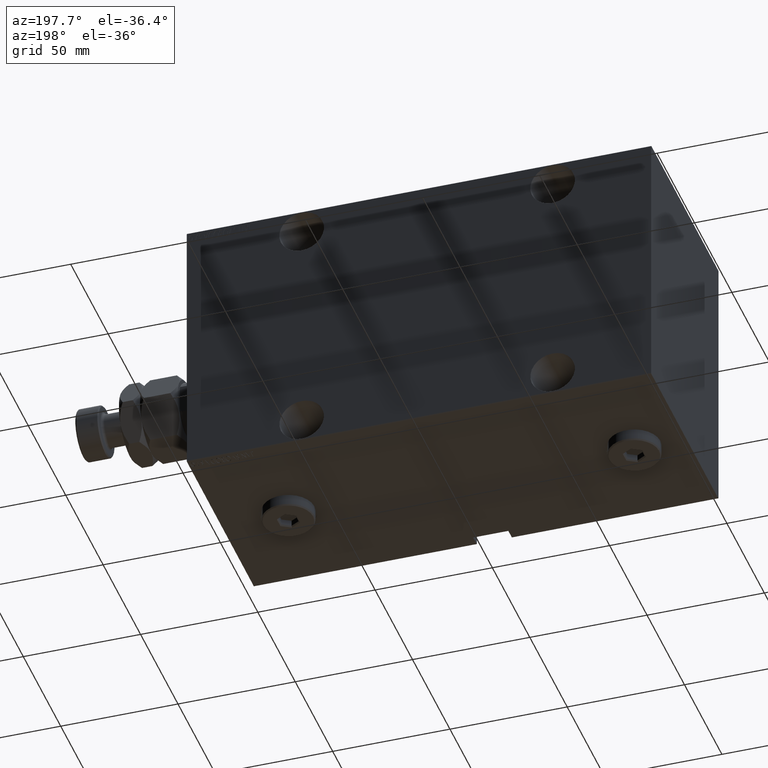
[diagram: clean part render]
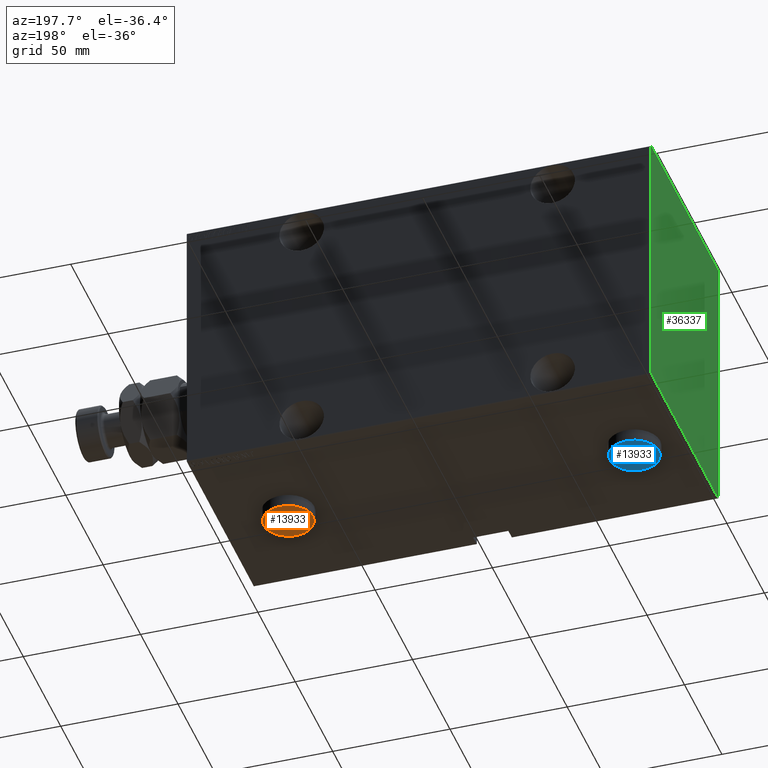
[diagram: same view with three faces highlighted in distinct colors, each labeled with its STEP entity id]
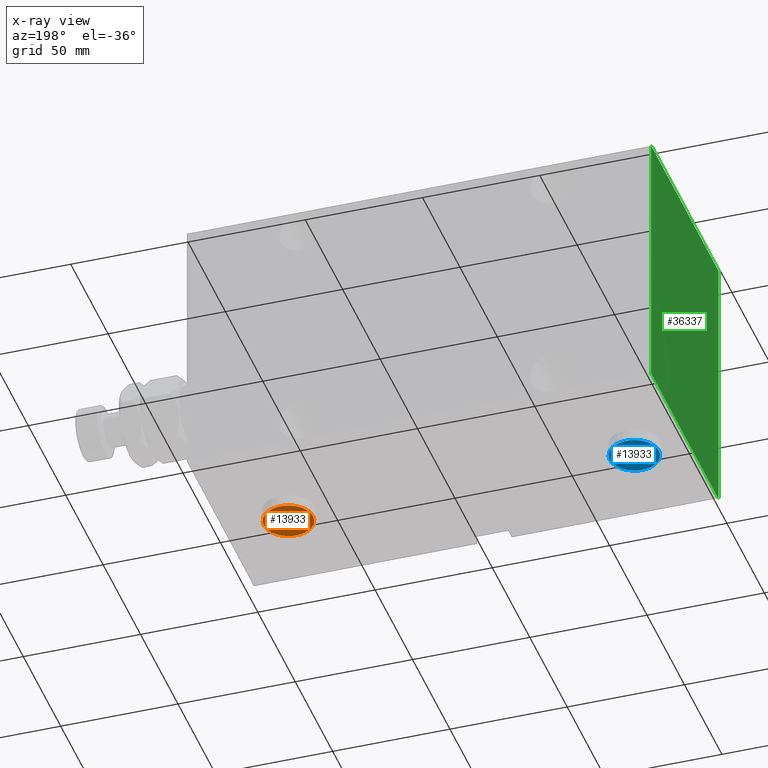
[diagram: x-ray of the same camera — body ghosted, the three highlighted faces saturated]
A machine part, auxiliary view with three faces highlighted in distinct colors.
The next image is the same camera in x-ray (body ghosted, the three faces saturated) — at least one of them is partly hidden behind the body in this view.
Their STEP definitions:

[orange] entity #13933 — the highlighted planar face has unit normal (-0, 0, -1).
#1099 = AXIS2_PLACEMENT_3D ( 'NONE', #19520, #33734, #44201 ) ;
#1739 = VECTOR ( 'NONE', #40780, 1000.000000000000000 ) ;
#1876 = ORIENTED_EDGE ( 'NONE', *, *, #33628, .T. ) ;
#2404 = CARTESIAN_POINT ( 'NONE',  ( -10.50000000000000178, 0.000000000000000000, 5.000000000000000000 ) ) ;
#2684 = ORIENTED_EDGE ( 'NONE', *, *, #27902, .T. ) ;
#5346 = CARTESIAN_POINT ( 'NONE',  ( -4.166666666666664298, 2.405626121623439584, 5.000000000000000000 ) ) ;
#5561 = VECTOR ( 'NONE', #16731, 1000.000000000000000 ) ;
#6632 = DIRECTION ( 'NONE',  ( 0.000000000000000000, 0.000000000000000000, 1.000000000000000000 ) ) ;
#7178 = CARTESIAN_POINT ( 'NONE',  ( 4.166666666666664298, -2.405626121623439584, 5.000000000000000000 ) ) ;
#7204 = VERTEX_POINT ( 'NONE', #30893 ) ;
#7207 = ORIENTED_EDGE ( 'NONE', *, *, #35777, .T. ) ;
#10361 = ORIENTED_EDGE ( 'NONE', *, *, #33558, .T. ) ;
#11261 = ORIENTED_EDGE ( 'NONE', *, *, #36552, .T. ) ;
#11457 = LINE ( 'NONE', #32888, #12334 ) ;
#12033 = DIRECTION ( 'NONE',  ( 1.000000000000000000, 0.000000000000000000, 0.000000000000000000 ) ) ;
#12334 = VECTOR ( 'NONE', #30086, 1000.000000000000000 ) ;
#13609 = FACE_OUTER_BOUND ( 'NONE', #14992, .T. ) ;
#13933 = ADVANCED_FACE ( 'NONE', ( #27589, #13609 ), #42251, .T. ) ;
#14524 = VECTOR ( 'NONE', #17740, 1000.000000000000114 ) ;
#14992 = EDGE_LOOP ( 'NONE', ( #2684, #20699 ) ) ;
#15299 = CARTESIAN_POINT ( 'NONE',  ( 0.000000000000000000, 0.000000000000000000, 5.000000000000000000 ) ) ;
#16211 = VERTEX_POINT ( 'NONE', #41224 ) ;
#16731 = DIRECTION ( 'NONE',  ( -0.8660254037844384856, 0.5000000000000002220, 0.000000000000000000 ) ) ;
#17740 = DIRECTION ( 'NONE',  ( 0.8660254037844388186, 0.4999999999999997780, 0.000000000000000000 ) ) ;
#18246 = ORIENTED_EDGE ( 'NONE', *, *, #28723, .T. ) ;
#19076 = LINE ( 'NONE', #40722, #36798 ) ;
#19520 = CARTESIAN_POINT ( 'NONE',  ( 0.000000000000000000, 0.000000000000000000, 5.000000000000000000 ) ) ;
#19972 = VERTEX_POINT ( 'NONE', #2404 ) ;
#20699 = ORIENTED_EDGE ( 'NONE', *, *, #33293, .T. ) ;
#22382 = AXIS2_PLACEMENT_3D ( 'NONE', #15299, #29281, #12033 ) ;
#22493 = VERTEX_POINT ( 'NONE', #44530 ) ;
#23101 = DIRECTION ( 'NONE',  ( 1.024305408229881337E-16, -1.000000000000000000, 0.000000000000000000 ) ) ;
#23725 = LINE ( 'NONE', #37903, #5561 ) ;
#26590 = CARTESIAN_POINT ( 'NONE',  ( -4.166666666666664298, 2.116950987028627829, 5.000000000000000000 ) ) ;
#26843 = VERTEX_POINT ( 'NONE', #45358 ) ;
#27589 = FACE_BOUND ( 'NONE', #32862, .T. ) ;
#27902 = EDGE_CURVE ( 'NONE', #19972, #22493, #36503, .T. ) ;
#28723 = EDGE_CURVE ( 'NONE', #26843, #30562, #30073, .T. ) ;
#29255 = VERTEX_POINT ( 'NONE', #31983 ) ;
#29281 = DIRECTION ( 'NONE',  ( 0.000000000000000000, 0.000000000000000000, 1.000000000000000000 ) ) ;
#29403 = CARTESIAN_POINT ( 'NONE',  ( 4.166666666666664298, -2.116950987028627384, 5.000000000000000000 ) ) ;
#29819 = VERTEX_POINT ( 'NONE', #7178 ) ;
#30073 = LINE ( 'NONE', #26590, #1739 ) ;
#30086 = DIRECTION ( 'NONE',  ( -0.8660254037844387076, -0.4999999999999998335, 0.000000000000000000 ) ) ;
#30249 = DIRECTION ( 'NONE',  ( 0.8660254037844387076, -0.4999999999999998335, 0.000000000000000000 ) ) ;
#30562 = VERTEX_POINT ( 'NONE', #5346 ) ;
#30893 = CARTESIAN_POINT ( 'NONE',  ( -6.281144585932674641E-17, 4.811252243246876503, 5.000000000000000000 ) ) ;
#31983 = CARTESIAN_POINT ( 'NONE',  ( 4.166666666666663410, 2.405626121623439584, 5.000000000000000000 ) ) ;
#32389 = CARTESIAN_POINT ( 'NONE',  ( -0.2499999999999992506, 4.666914675949470848, 5.000000000000000000 ) ) ;
#32862 = EDGE_LOOP ( 'NONE', ( #18246, #33815, #10361, #11261, #7207, #1876 ) ) ;
#32888 = CARTESIAN_POINT ( 'NONE',  ( 0.2499999999999981681, -4.666914675949471736, 5.000000000000000000 ) ) ;
#33293 = EDGE_CURVE ( 'NONE', #22493, #19972, #34573, .T. ) ;
#33558 = EDGE_CURVE ( 'NONE', #7204, #29255, #19076, .T. ) ;
#33628 = EDGE_CURVE ( 'NONE', #16211, #26843, #23725, .T. ) ;
#33734 = DIRECTION ( 'NONE',  ( 0.000000000000000000, 0.000000000000000000, 1.000000000000000000 ) ) ;
#33815 = ORIENTED_EDGE ( 'NONE', *, *, #38615, .T. ) ;
#34573 = CIRCLE ( 'NONE', #1099, 10.50000000000000178 ) ;
#34966 = LINE ( 'NONE', #32389, #14524 ) ;
#35026 = DIRECTION ( 'NONE',  ( 1.000000000000000000, 0.000000000000000000, -0.000000000000000000 ) ) ;
#35777 = EDGE_CURVE ( 'NONE', #29819, #16211, #11457, .T. ) ;
#36503 = CIRCLE ( 'NONE', #22382, 10.50000000000000178 ) ;
#36552 = EDGE_CURVE ( 'NONE', #29255, #29819, #41024, .T. ) ;
#36798 = VECTOR ( 'NONE', #30249, 1000.000000000000000 ) ;
#37619 = VECTOR ( 'NONE', #23101, 1000.000000000000000 ) ;
#37903 = CARTESIAN_POINT ( 'NONE',  ( -3.916666666666664742, -2.549963688920843907, 5.000000000000000000 ) ) ;
#38615 = EDGE_CURVE ( 'NONE', #30562, #7204, #34966, .T. ) ;
#40722 = CARTESIAN_POINT ( 'NONE',  ( 3.916666666666664742, 2.549963688920845239, 5.000000000000000000 ) ) ;
#40780 = DIRECTION ( 'NONE',  ( 1.024305408229881337E-16, 1.000000000000000000, 0.000000000000000000 ) ) ;
#41024 = LINE ( 'NONE', #29403, #37619 ) ;
#41224 = CARTESIAN_POINT ( 'NONE',  ( -8.363929151985410416E-16, -4.811252243246877391, 5.000000000000000000 ) ) ;
#41786 = CARTESIAN_POINT ( 'NONE',  ( 0.000000000000000000, 0.000000000000000000, 5.000000000000000000 ) ) ;
#42251 = PLANE ( 'NONE',  #45899 ) ;
#44201 = DIRECTION ( 'NONE',  ( 1.000000000000000000, 0.000000000000000000, 0.000000000000000000 ) ) ;
#44530 = CARTESIAN_POINT ( 'NONE',  ( 10.50000000000000178, 1.316495309083404815E-15, 5.000000000000000000 ) ) ;
#45358 = CARTESIAN_POINT ( 'NONE',  ( -4.166666666666665186, -2.405626121623437363, 5.000000000000000000 ) ) ;
#45899 = AXIS2_PLACEMENT_3D ( 'NONE', #41786, #6632, #35026 ) ;

[blue] entity #13933 — the highlighted planar face has unit normal (-0, 0, -1).
#1099 = AXIS2_PLACEMENT_3D ( 'NONE', #19520, #33734, #44201 ) ;
#1739 = VECTOR ( 'NONE', #40780, 1000.000000000000000 ) ;
#1876 = ORIENTED_EDGE ( 'NONE', *, *, #33628, .T. ) ;
#2404 = CARTESIAN_POINT ( 'NONE',  ( -10.50000000000000178, 0.000000000000000000, 5.000000000000000000 ) ) ;
#2684 = ORIENTED_EDGE ( 'NONE', *, *, #27902, .T. ) ;
#5346 = CARTESIAN_POINT ( 'NONE',  ( -4.166666666666664298, 2.405626121623439584, 5.000000000000000000 ) ) ;
#5561 = VECTOR ( 'NONE', #16731, 1000.000000000000000 ) ;
#6632 = DIRECTION ( 'NONE',  ( 0.000000000000000000, 0.000000000000000000, 1.000000000000000000 ) ) ;
#7178 = CARTESIAN_POINT ( 'NONE',  ( 4.166666666666664298, -2.405626121623439584, 5.000000000000000000 ) ) ;
#7204 = VERTEX_POINT ( 'NONE', #30893 ) ;
#7207 = ORIENTED_EDGE ( 'NONE', *, *, #35777, .T. ) ;
#10361 = ORIENTED_EDGE ( 'NONE', *, *, #33558, .T. ) ;
#11261 = ORIENTED_EDGE ( 'NONE', *, *, #36552, .T. ) ;
#11457 = LINE ( 'NONE', #32888, #12334 ) ;
#12033 = DIRECTION ( 'NONE',  ( 1.000000000000000000, 0.000000000000000000, 0.000000000000000000 ) ) ;
#12334 = VECTOR ( 'NONE', #30086, 1000.000000000000000 ) ;
#13609 = FACE_OUTER_BOUND ( 'NONE', #14992, .T. ) ;
#13933 = ADVANCED_FACE ( 'NONE', ( #27589, #13609 ), #42251, .T. ) ;
#14524 = VECTOR ( 'NONE', #17740, 1000.000000000000114 ) ;
#14992 = EDGE_LOOP ( 'NONE', ( #2684, #20699 ) ) ;
#15299 = CARTESIAN_POINT ( 'NONE',  ( 0.000000000000000000, 0.000000000000000000, 5.000000000000000000 ) ) ;
#16211 = VERTEX_POINT ( 'NONE', #41224 ) ;
#16731 = DIRECTION ( 'NONE',  ( -0.8660254037844384856, 0.5000000000000002220, 0.000000000000000000 ) ) ;
#17740 = DIRECTION ( 'NONE',  ( 0.8660254037844388186, 0.4999999999999997780, 0.000000000000000000 ) ) ;
#18246 = ORIENTED_EDGE ( 'NONE', *, *, #28723, .T. ) ;
#19076 = LINE ( 'NONE', #40722, #36798 ) ;
#19520 = CARTESIAN_POINT ( 'NONE',  ( 0.000000000000000000, 0.000000000000000000, 5.000000000000000000 ) ) ;
#19972 = VERTEX_POINT ( 'NONE', #2404 ) ;
#20699 = ORIENTED_EDGE ( 'NONE', *, *, #33293, .T. ) ;
#22382 = AXIS2_PLACEMENT_3D ( 'NONE', #15299, #29281, #12033 ) ;
#22493 = VERTEX_POINT ( 'NONE', #44530 ) ;
#23101 = DIRECTION ( 'NONE',  ( 1.024305408229881337E-16, -1.000000000000000000, 0.000000000000000000 ) ) ;
#23725 = LINE ( 'NONE', #37903, #5561 ) ;
#26590 = CARTESIAN_POINT ( 'NONE',  ( -4.166666666666664298, 2.116950987028627829, 5.000000000000000000 ) ) ;
#26843 = VERTEX_POINT ( 'NONE', #45358 ) ;
#27589 = FACE_BOUND ( 'NONE', #32862, .T. ) ;
#27902 = EDGE_CURVE ( 'NONE', #19972, #22493, #36503, .T. ) ;
#28723 = EDGE_CURVE ( 'NONE', #26843, #30562, #30073, .T. ) ;
#29255 = VERTEX_POINT ( 'NONE', #31983 ) ;
#29281 = DIRECTION ( 'NONE',  ( 0.000000000000000000, 0.000000000000000000, 1.000000000000000000 ) ) ;
#29403 = CARTESIAN_POINT ( 'NONE',  ( 4.166666666666664298, -2.116950987028627384, 5.000000000000000000 ) ) ;
#29819 = VERTEX_POINT ( 'NONE', #7178 ) ;
#30073 = LINE ( 'NONE', #26590, #1739 ) ;
#30086 = DIRECTION ( 'NONE',  ( -0.8660254037844387076, -0.4999999999999998335, 0.000000000000000000 ) ) ;
#30249 = DIRECTION ( 'NONE',  ( 0.8660254037844387076, -0.4999999999999998335, 0.000000000000000000 ) ) ;
#30562 = VERTEX_POINT ( 'NONE', #5346 ) ;
#30893 = CARTESIAN_POINT ( 'NONE',  ( -6.281144585932674641E-17, 4.811252243246876503, 5.000000000000000000 ) ) ;
#31983 = CARTESIAN_POINT ( 'NONE',  ( 4.166666666666663410, 2.405626121623439584, 5.000000000000000000 ) ) ;
#32389 = CARTESIAN_POINT ( 'NONE',  ( -0.2499999999999992506, 4.666914675949470848, 5.000000000000000000 ) ) ;
#32862 = EDGE_LOOP ( 'NONE', ( #18246, #33815, #10361, #11261, #7207, #1876 ) ) ;
#32888 = CARTESIAN_POINT ( 'NONE',  ( 0.2499999999999981681, -4.666914675949471736, 5.000000000000000000 ) ) ;
#33293 = EDGE_CURVE ( 'NONE', #22493, #19972, #34573, .T. ) ;
#33558 = EDGE_CURVE ( 'NONE', #7204, #29255, #19076, .T. ) ;
#33628 = EDGE_CURVE ( 'NONE', #16211, #26843, #23725, .T. ) ;
#33734 = DIRECTION ( 'NONE',  ( 0.000000000000000000, 0.000000000000000000, 1.000000000000000000 ) ) ;
#33815 = ORIENTED_EDGE ( 'NONE', *, *, #38615, .T. ) ;
#34573 = CIRCLE ( 'NONE', #1099, 10.50000000000000178 ) ;
#34966 = LINE ( 'NONE', #32389, #14524 ) ;
#35026 = DIRECTION ( 'NONE',  ( 1.000000000000000000, 0.000000000000000000, -0.000000000000000000 ) ) ;
#35777 = EDGE_CURVE ( 'NONE', #29819, #16211, #11457, .T. ) ;
#36503 = CIRCLE ( 'NONE', #22382, 10.50000000000000178 ) ;
#36552 = EDGE_CURVE ( 'NONE', #29255, #29819, #41024, .T. ) ;
#36798 = VECTOR ( 'NONE', #30249, 1000.000000000000000 ) ;
#37619 = VECTOR ( 'NONE', #23101, 1000.000000000000000 ) ;
#37903 = CARTESIAN_POINT ( 'NONE',  ( -3.916666666666664742, -2.549963688920843907, 5.000000000000000000 ) ) ;
#38615 = EDGE_CURVE ( 'NONE', #30562, #7204, #34966, .T. ) ;
#40722 = CARTESIAN_POINT ( 'NONE',  ( 3.916666666666664742, 2.549963688920845239, 5.000000000000000000 ) ) ;
#40780 = DIRECTION ( 'NONE',  ( 1.024305408229881337E-16, 1.000000000000000000, 0.000000000000000000 ) ) ;
#41024 = LINE ( 'NONE', #29403, #37619 ) ;
#41224 = CARTESIAN_POINT ( 'NONE',  ( -8.363929151985410416E-16, -4.811252243246877391, 5.000000000000000000 ) ) ;
#41786 = CARTESIAN_POINT ( 'NONE',  ( 0.000000000000000000, 0.000000000000000000, 5.000000000000000000 ) ) ;
#42251 = PLANE ( 'NONE',  #45899 ) ;
#44201 = DIRECTION ( 'NONE',  ( 1.000000000000000000, 0.000000000000000000, 0.000000000000000000 ) ) ;
#44530 = CARTESIAN_POINT ( 'NONE',  ( 10.50000000000000178, 1.316495309083404815E-15, 5.000000000000000000 ) ) ;
#45358 = CARTESIAN_POINT ( 'NONE',  ( -4.166666666666665186, -2.405626121623437363, 5.000000000000000000 ) ) ;
#45899 = AXIS2_PLACEMENT_3D ( 'NONE', #41786, #6632, #35026 ) ;

[green] entity #36337 — the highlighted planar face has unit normal (-1, 0, 0).
#1735 = FACE_OUTER_BOUND ( 'NONE', #43907, .T. ) ;
#2003 = VECTOR ( 'NONE', #28379, 1000.000000000000000 ) ;
#2570 = VECTOR ( 'NONE', #33396, 1000.000000000000114 ) ;
#2702 = VECTOR ( 'NONE', #22369, 1000.000000000000114 ) ;
#3597 = ORIENTED_EDGE ( 'NONE', *, *, #30843, .T. ) ;
#4982 = CARTESIAN_POINT ( 'NONE',  ( 198.0000000000000000, 51.10000000000005116, -51.10000000000005116 ) ) ;
#5436 = LINE ( 'NONE', #4982, #2570 ) ;
#5901 = EDGE_CURVE ( 'NONE', #43332, #43448, #39119, .T. ) ;
#7496 = ORIENTED_EDGE ( 'NONE', *, *, #5901, .T. ) ;
#8160 = CARTESIAN_POINT ( 'NONE',  ( 198.0000000000000000, -45.00000000000000000, 57.20000000000000284 ) ) ;
#8952 = PLANE ( 'NONE',  #39855 ) ;
#9403 = VECTOR ( 'NONE', #9691, 1000.000000000000000 ) ;
#9661 = ORIENTED_EDGE ( 'NONE', *, *, #31755, .T. ) ;
#9691 = DIRECTION ( 'NONE',  ( -0.000000000000000000, -0.7071067811865066055, 0.7071067811865884289 ) ) ;
#10809 = CARTESIAN_POINT ( 'NONE',  ( 198.0000000000000000, -45.00000000000000000, -57.50000000000002132 ) ) ;
#11978 = DIRECTION ( 'NONE',  ( 1.000000000000000000, 0.000000000000000000, -0.000000000000000000 ) ) ;
#11997 = CARTESIAN_POINT ( 'NONE',  ( 198.0000000000000000, -45.00000000000000000, 57.49999999999999289 ) ) ;
#12201 = VECTOR ( 'NONE', #31257, 1000.000000000000000 ) ;
#15722 = CARTESIAN_POINT ( 'NONE',  ( 198.0000000000000000, -44.70000000000005969, -57.50000000000002132 ) ) ;
#15936 = VECTOR ( 'NONE', #36413, 1000.000000000000000 ) ;
#16986 = LINE ( 'NONE', #43484, #2003 ) ;
#20634 = CARTESIAN_POINT ( 'NONE',  ( 198.0000000000000000, -45.00000000000000000, -57.20000000000005969 ) ) ;
#20880 = VERTEX_POINT ( 'NONE', #42349 ) ;
#21158 = VECTOR ( 'NONE', #36325, 1000.000000000000114 ) ;
#21520 = LINE ( 'NONE', #10809, #15936 ) ;
#22369 = DIRECTION ( 'NONE',  ( -0.000000000000000000, -0.7071067811865474617, -0.7071067811865474617 ) ) ;
#23308 = LINE ( 'NONE', #34023, #34187 ) ;
#23675 = CARTESIAN_POINT ( 'NONE',  ( 198.0000000000000000, 51.10000000000261622, 51.09999999999670450 ) ) ;
#23943 = EDGE_CURVE ( 'NONE', #31043, #20880, #23308, .T. ) ;
#24925 = CARTESIAN_POINT ( 'NONE',  ( 198.0000000000000000, -44.69999999999997442, 57.49999999999999289 ) ) ;
#25513 = ORIENTED_EDGE ( 'NONE', *, *, #43091, .T. ) ;
#25621 = CARTESIAN_POINT ( 'NONE',  ( 198.0000000000000000, -51.10000000000005116, -51.10000000000005116 ) ) ;
#26892 = CARTESIAN_POINT ( 'NONE',  ( 198.0000000000000000, 0.000000000000000000, 0.000000000000000000 ) ) ;
#27542 = VERTEX_POINT ( 'NONE', #24925 ) ;
#28379 = DIRECTION ( 'NONE',  ( 0.000000000000000000, -1.000000000000000000, -2.312964634635742957E-16 ) ) ;
#29359 = LINE ( 'NONE', #30280, #2702 ) ;
#30280 = CARTESIAN_POINT ( 'NONE',  ( 198.0000000000000000, -51.10000000000000853, 51.10000000000000853 ) ) ;
#30500 = VERTEX_POINT ( 'NONE', #8160 ) ;
#30843 = EDGE_CURVE ( 'NONE', #30500, #43332, #43900, .T. ) ;
#31043 = VERTEX_POINT ( 'NONE', #33089 ) ;
#31257 = DIRECTION ( 'NONE',  ( 0.000000000000000000, 0.000000000000000000, -1.000000000000000000 ) ) ;
#31577 = LINE ( 'NONE', #23675, #9403 ) ;
#31755 = EDGE_CURVE ( 'NONE', #43448, #43893, #21520, .T. ) ;
#32716 = EDGE_CURVE ( 'NONE', #43893, #31043, #5436, .T. ) ;
#32901 = ORIENTED_EDGE ( 'NONE', *, *, #23943, .T. ) ;
#33089 = CARTESIAN_POINT ( 'NONE',  ( 198.0000000000000000, 45.00000000000001421, -57.20000000000006679 ) ) ;
#33396 = DIRECTION ( 'NONE',  ( -0.000000000000000000, 0.7071067811865474617, 0.7071067811865474617 ) ) ;
#34023 = CARTESIAN_POINT ( 'NONE',  ( 198.0000000000000000, 45.00000000000001421, -57.50000000000000711 ) ) ;
#34187 = VECTOR ( 'NONE', #41228, 1000.000000000000000 ) ;
#34871 = ORIENTED_EDGE ( 'NONE', *, *, #32716, .T. ) ;
#36325 = DIRECTION ( 'NONE',  ( -0.000000000000000000, 0.7071067811865474617, -0.7071067811865474617 ) ) ;
#36337 = ADVANCED_FACE ( 'NONE', ( #1735 ), #8952, .T. ) ;
#36413 = DIRECTION ( 'NONE',  ( 0.000000000000000000, 1.000000000000000000, 1.541976423090495140E-16 ) ) ;
#36515 = ORIENTED_EDGE ( 'NONE', *, *, #42450, .T. ) ;
#37571 = DIRECTION ( 'NONE',  ( -0.000000000000000000, 0.000000000000000000, -1.000000000000000000 ) ) ;
#37819 = EDGE_CURVE ( 'NONE', #27542, #30500, #29359, .T. ) ;
#38215 = ORIENTED_EDGE ( 'NONE', *, *, #37819, .T. ) ;
#39119 = LINE ( 'NONE', #25621, #21158 ) ;
#39855 = AXIS2_PLACEMENT_3D ( 'NONE', #26892, #11978, #37571 ) ;
#41228 = DIRECTION ( 'NONE',  ( 0.000000000000000000, 0.000000000000000000, 1.000000000000000000 ) ) ;
#42349 = CARTESIAN_POINT ( 'NONE',  ( 198.0000000000000000, 45.00000000000001421, 57.19999999999998863 ) ) ;
#42450 = EDGE_CURVE ( 'NONE', #20880, #42988, #31577, .T. ) ;
#42988 = VERTEX_POINT ( 'NONE', #45142 ) ;
#43091 = EDGE_CURVE ( 'NONE', #42988, #27542, #16986, .T. ) ;
#43332 = VERTEX_POINT ( 'NONE', #20634 ) ;
#43448 = VERTEX_POINT ( 'NONE', #15722 ) ;
#43484 = CARTESIAN_POINT ( 'NONE',  ( 198.0000000000000000, 45.00000000000001421, 57.50000000000001421 ) ) ;
#43893 = VERTEX_POINT ( 'NONE', #44649 ) ;
#43900 = LINE ( 'NONE', #11997, #12201 ) ;
#43907 = EDGE_LOOP ( 'NONE', ( #9661, #34871, #32901, #36515, #25513, #38215, #3597, #7496 ) ) ;
#44649 = CARTESIAN_POINT ( 'NONE',  ( 198.0000000000000000, 44.70000000000004547, -57.50000000000000711 ) ) ;
#45142 = CARTESIAN_POINT ( 'NONE',  ( 198.0000000000000000, 44.70000000000004547, 57.50000000000001421 ) ) ;